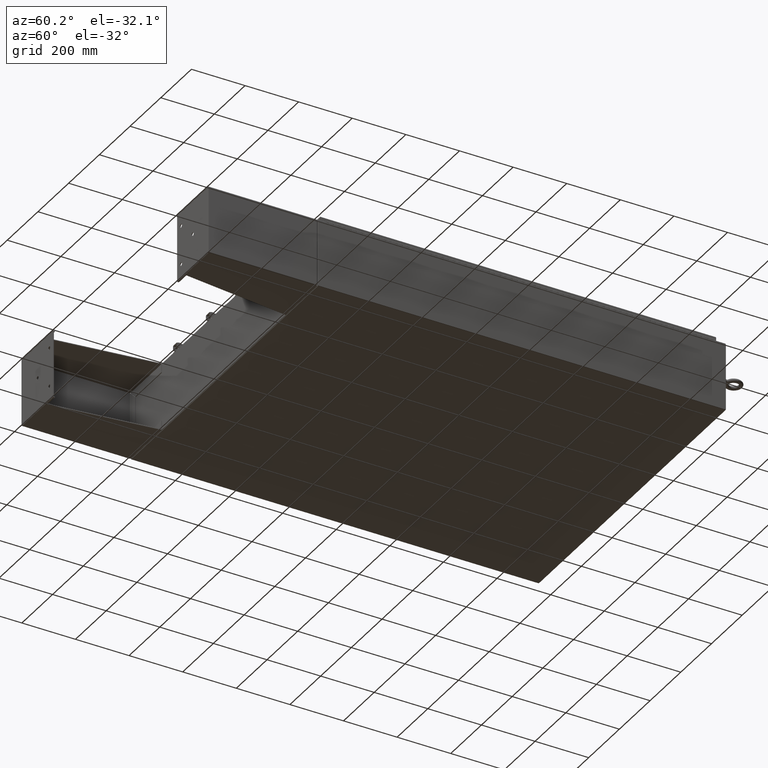
[diagram: clean part render]
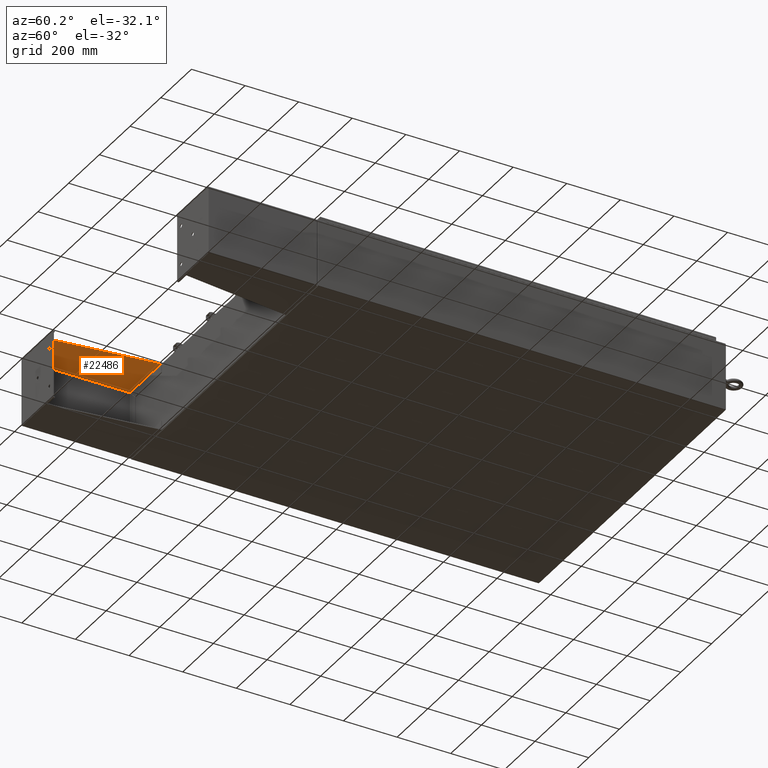
[diagram: same view with one face highlighted and labeled with its STEP entity id]
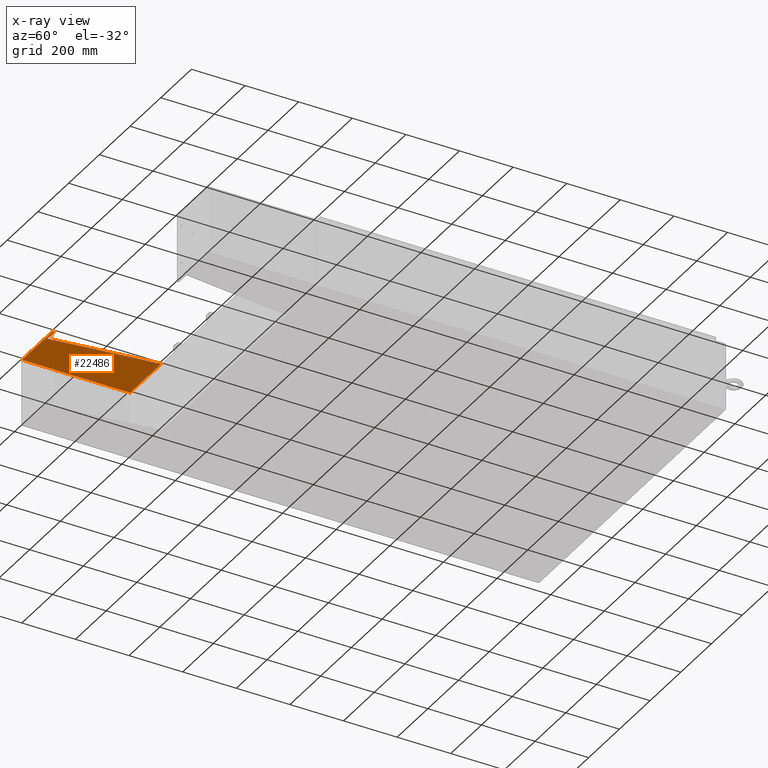
[diagram: x-ray of the same camera — body ghosted, the highlighted face saturated]
A machine part, auxiliary view. The second image highlights one B-rep face of the part: STEP entity #22486.
The next image is the same camera in x-ray: the body ghosted, the highlighted face saturated — about 0% of this face is hidden behind the body in this view.
In plain terms, the highlighted planar face has unit normal (0, 0, -1).
Its self-contained STEP definition (entity closure, byte-faithful):
#480 = DIRECTION ( 'NONE',  ( -3.550958521948399600E-015, 2.224516740755108100E-031, 1.000000000000000000 ) ) ;
#1738 = VECTOR ( 'NONE', #480, 39.37007874015748100 ) ;
#2204 = DIRECTION ( 'NONE',  ( -0.0000000000000000000, 1.000000000000000000, 1.198498701752371100E-031 ) ) ;
#2382 = CARTESIAN_POINT ( 'NONE',  ( -4.895999999999999000, 7.857000000000002900, 0.03900000000003747700 ) ) ;
#3743 = CARTESIAN_POINT ( 'NONE',  ( -4.896000000000043400, 7.856999999999937100, 8.000999999999999400 ) ) ;
#6798 = VECTOR ( 'NONE', #30325, 39.37007874015748100 ) ;
#6892 = VERTEX_POINT ( 'NONE', #23485 ) ;
#7984 = ORIENTED_EDGE ( 'NONE', *, *, #24093, .F. ) ;
#9065 = DIRECTION ( 'NONE',  ( 7.004738445293026100E-015, -2.790682903051007200E-031, -1.000000000000000000 ) ) ;
#9828 = VERTEX_POINT ( 'NONE', #2382 ) ;
#11215 = VECTOR ( 'NONE', #43347, 39.37007874015748100 ) ;
#16346 = VERTEX_POINT ( 'NONE', #63081 ) ;
#17890 = ORIENTED_EDGE ( 'NONE', *, *, #58567, .F. ) ;
#18975 = VERTEX_POINT ( 'NONE', #21022 ) ;
#20727 = LINE ( 'NONE', #61850, #6798 ) ;
#21022 = CARTESIAN_POINT ( 'NONE',  ( -4.896000000000000800, -8.000000000000001800, 0.03900000000000250500 ) ) ;
#22336 = CARTESIAN_POINT ( 'NONE',  ( -4.896000000000022100, -7.749999999999999100, 6.052216497445943600 ) ) ;
#22486 = ADVANCED_FACE ( 'NONE', ( #65357 ), #23552, .T. ) ;
#22958 = VECTOR ( 'NONE', #2204, 39.37007874015748100 ) ;
#23328 = CARTESIAN_POINT ( 'NONE',  ( -4.896000000000030100, 7.999999999999936900, 8.000999999999999400 ) ) ;
#23485 = CARTESIAN_POINT ( 'NONE',  ( -4.896000000000031000, -8.000000000000001800, 8.000999999999999400 ) ) ;
#23552 = PLANE ( 'NONE',  #59764 ) ;
#24093 = EDGE_CURVE ( 'NONE', #16346, #34471, #37957, .T. ) ;
#25152 = CARTESIAN_POINT ( 'NONE',  ( -4.896000000000024800, -7.749999999999999100, 6.052216497445943600 ) ) ;
#25256 = VERTEX_POINT ( 'NONE', #40502 ) ;
#26840 = LINE ( 'NONE', #3743, #53205 ) ;
#26977 = EDGE_CURVE ( 'NONE', #34471, #25256, #67228, .T. ) ;
#28867 = DIRECTION ( 'NONE',  ( 3.550958521948399600E-015, -2.224516740755108100E-031, -1.000000000000000000 ) ) ;
#29754 = EDGE_CURVE ( 'NONE', #9828, #18975, #20727, .T. ) ;
#30325 = DIRECTION ( 'NONE',  ( 0.0000000000000000000, -1.000000000000000000, -1.198498701752371100E-031 ) ) ;
#34471 = VERTEX_POINT ( 'NONE', #25152 ) ;
#37004 = LINE ( 'NONE', #59976, #22958 ) ;
#37957 = LINE ( 'NONE', #41796, #50282 ) ;
#38560 = EDGE_CURVE ( 'NONE', #6892, #16346, #37004, .T. ) ;
#40502 = CARTESIAN_POINT ( 'NONE',  ( -4.896000000000043400, 7.856999999999937100, 8.000999999999999400 ) ) ;
#41796 = CARTESIAN_POINT ( 'NONE',  ( -4.896000000000031000, -7.749999999999999100, 8.001000000000024300 ) ) ;
#43347 = DIRECTION ( 'NONE',  ( -4.399772607369896100E-016, 0.9922942345449394800, 0.1239038017531047700 ) ) ;
#43779 = LINE ( 'NONE', #63547, #1738 ) ;
#45531 = ORIENTED_EDGE ( 'NONE', *, *, #47265, .F. ) ;
#46969 = ORIENTED_EDGE ( 'NONE', *, *, #26977, .F. ) ;
#47265 = EDGE_CURVE ( 'NONE', #25256, #9828, #26840, .T. ) ;
#50282 = VECTOR ( 'NONE', #62741, 39.37007874015748100 ) ;
#50593 = ORIENTED_EDGE ( 'NONE', *, *, #29754, .F. ) ;
#53205 = VECTOR ( 'NONE', #9065, 39.37007874015748100 ) ;
#58567 = EDGE_CURVE ( 'NONE', #18975, #6892, #43779, .T. ) ;
#59549 = ORIENTED_EDGE ( 'NONE', *, *, #38560, .F. ) ;
#59764 = AXIS2_PLACEMENT_3D ( 'NONE', #23328, #60422, #28867 ) ;
#59976 = CARTESIAN_POINT ( 'NONE',  ( -4.896000000000030100, 7.999999999999936900, 8.000999999999999400 ) ) ;
#60422 = DIRECTION ( 'NONE',  ( 1.000000000000000000, 4.465013461865369200E-059, 3.550958521948399600E-015 ) ) ;
#61850 = CARTESIAN_POINT ( 'NONE',  ( -4.895999999999999000, 8.000000000000001800, 0.03900000000003310500 ) ) ;
#62620 = EDGE_LOOP ( 'NONE', ( #46969, #7984, #59549, #17890, #50593, #45531 ) ) ;
#62741 = DIRECTION ( 'NONE',  ( 3.550958521948399600E-015, -2.224516740755108100E-031, -1.000000000000000000 ) ) ;
#63081 = CARTESIAN_POINT ( 'NONE',  ( -4.896000000000029200, -7.749999999999999100, 8.001000000000024300 ) ) ;
#63547 = CARTESIAN_POINT ( 'NONE',  ( -4.896000000000031000, -8.000000000000001800, 8.000999999999999400 ) ) ;
#65357 = FACE_OUTER_BOUND ( 'NONE', #62620, .T. ) ;
#67228 = LINE ( 'NONE', #22336, #11215 ) ;